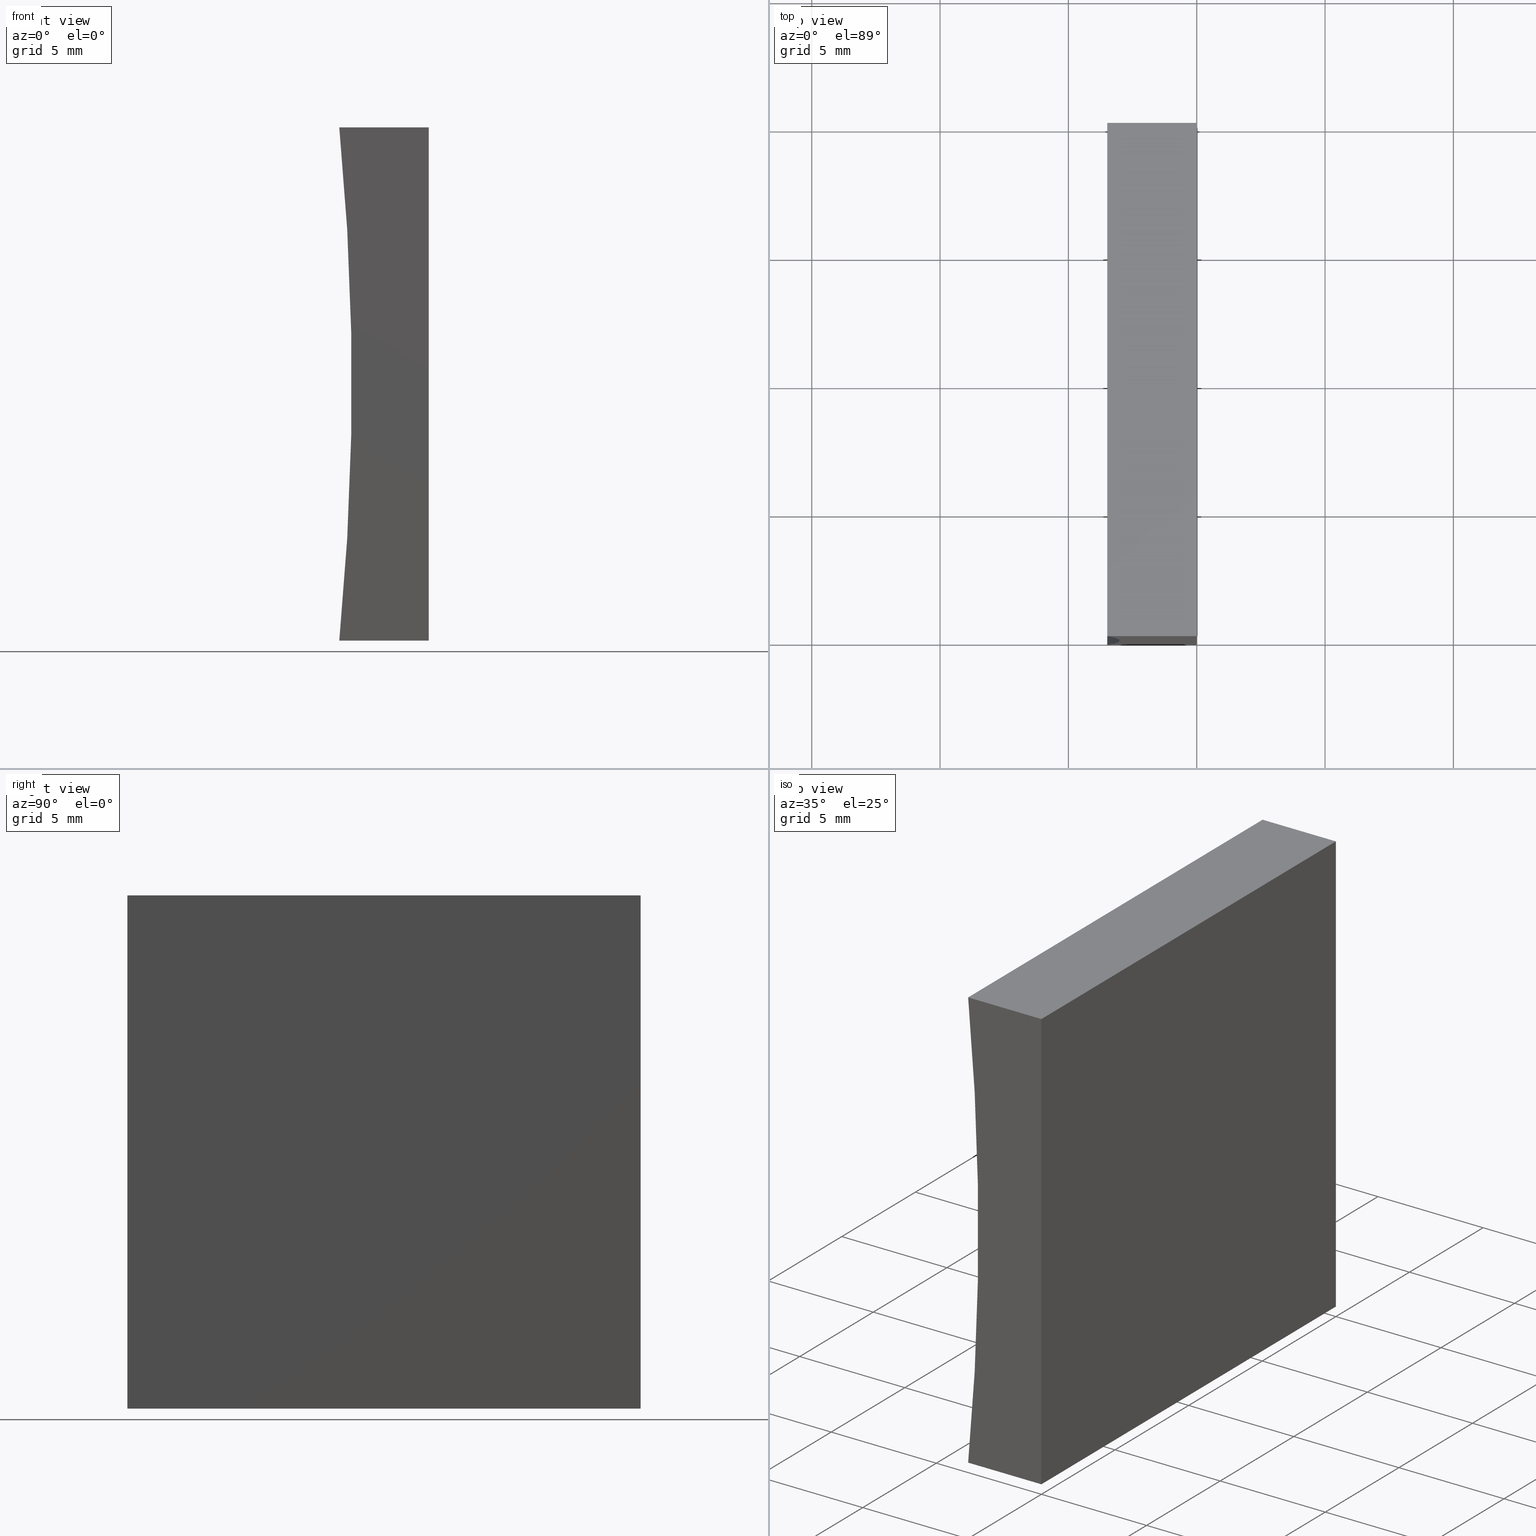
[diagram: canonical four-view strip — front | top / right | iso, engineering-drawing reading convention]
A machine part, canonical four-view strip (front | top / right | iso — engineering-drawing reading convention). The complete STEP part file that produces these views, byte-faithful:
ISO-10303-21;
HEADER;
FILE_DESCRIPTION (( 'STEP AP214' ),
    '1' );
FILE_NAME ('155349.STEP',
    '2019-06-28T06:00:40',
    ( 'user' ),
    ( '΢���й�' ),
    'SwSTEP 2.0',
    'SolidWorks 2016',
    '' );
FILE_SCHEMA (( 'AUTOMOTIVE_DESIGN' ));
ENDSEC;

DATA;
#1 = VERTEX_POINT ( 'NONE', #35 ) ;
#2 = LINE ( 'NONE', #153, #152 ) ;
#3 = EDGE_CURVE ( 'NONE', #157, #27, #21, .T. ) ;
#4 = VECTOR ( 'NONE', #156, 1000.000000000000000 ) ;
#5 = EDGE_CURVE ( 'NONE', #1, #146, #85, .T. ) ;
#6 = LINE ( 'NONE', #105, #165 ) ;
#7 = ORIENTED_EDGE ( 'NONE', *, *, #86, .T. ) ;
#8 = ORIENTED_EDGE ( 'NONE', *, *, #45, .T. ) ;
#9 =( NAMED_UNIT ( * ) SI_UNIT ( $, .STERADIAN. ) SOLID_ANGLE_UNIT ( ) );
#10 = AXIS2_PLACEMENT_3D ( 'NONE', #198, #184, #137 ) ;
#11 = ORIENTED_EDGE ( 'NONE', *, *, #182, .F. ) ;
#12 = FILL_AREA_STYLE ('',( #166 ) ) ;
#13 = FACE_OUTER_BOUND ( 'NONE', #107, .T. ) ;
#14 = DIRECTION ( 'NONE',  ( 0.0000000000000000000, 0.0000000000000000000, -1.000000000000000000 ) ) ;
#15 = DIRECTION ( 'NONE',  ( 0.0000000000000000000, 1.000000000000000000, 0.0000000000000000000 ) ) ;
#16 = LINE ( 'NONE', #180, #128 ) ;
#17 = PRODUCT_CONTEXT ( 'NONE', #162, 'mechanical' ) ;
#18 = ORIENTED_EDGE ( 'NONE', *, *, #69, .F. ) ;
#19 = AXIS2_PLACEMENT_3D ( 'NONE', #74, #111, #171 ) ;
#20 = APPLICATION_CONTEXT ( 'automotive_design' ) ;
#21 = LINE ( 'NONE', #136, #40 ) ;
#22 = ADVANCED_FACE ( 'NONE', ( #202 ), #129, .F. ) ;
#23 = CARTESIAN_POINT ( 'NONE',  ( 1.224646799147353300E-015, 20.00000000000000000, 20.00000000000000000 ) ) ;
#24 = VERTEX_POINT ( 'NONE', #56 ) ;
#25 = CYLINDRICAL_SURFACE ( 'NONE', #115, 103.3999999999999900 ) ;
#26 = MECHANICAL_DESIGN_GEOMETRIC_PRESENTATION_REPRESENTATION (  '', ( #161 ), #57 ) ;
#27 = VERTEX_POINT ( 'NONE', #163 ) ;
#28 = ORIENTED_EDGE ( 'NONE', *, *, #119, .F. ) ;
#29 = FACE_OUTER_BOUND ( 'NONE', #67, .T. ) ;
#30 = PRODUCT_DEFINITION_CONTEXT ( 'detailed design', #20, 'design' ) ;
#31 = DIRECTION ( 'NONE',  ( 0.0000000000000000000, 1.000000000000000000, 0.0000000000000000000 ) ) ;
#32 = ORIENTED_EDGE ( 'NONE', *, *, #195, .F. ) ;
#33 = EDGE_CURVE ( 'NONE', #146, #96, #42, .T. ) ;
#34 =( NAMED_UNIT ( * ) SI_UNIT ( $, .STERADIAN. ) SOLID_ANGLE_UNIT ( ) );
#35 = CARTESIAN_POINT ( 'NONE',  ( -3.484695015755795200, 0.0000000000000000000, 19.99999999999999600 ) ) ;
#36 = DIRECTION ( 'NONE',  ( -1.000000000000000000, 0.0000000000000000000, 6.123233995736766000E-017 ) ) ;
#37 = VECTOR ( 'NONE', #88, 1000.000000000000000 ) ;
#38 = CARTESIAN_POINT ( 'NONE',  ( 0.0000000000000000000, 0.0000000000000000000, 0.0000000000000000000 ) ) ;
#39 = PRODUCT ( '155349', '155349', '', ( #17 ) ) ;
#40 = VECTOR ( 'NONE', #93, 1000.000000000000000 ) ;
#41 = CARTESIAN_POINT ( 'NONE',  ( 1.224646799147353300E-015, 0.0000000000000000000, 20.00000000000000000 ) ) ;
#42 = LINE ( 'NONE', #159, #108 ) ;
#43 =( GEOMETRIC_REPRESENTATION_CONTEXT ( 3 ) GLOBAL_UNCERTAINTY_ASSIGNED_CONTEXT ( ( #126 ) ) GLOBAL_UNIT_ASSIGNED_CONTEXT ( ( #97, #176, #34 ) ) REPRESENTATION_CONTEXT ( 'NONE', 'WORKASPACE' ) );
#44 = VECTOR ( 'NONE', #78, 1000.000000000000000 ) ;
#45 = EDGE_CURVE ( 'NONE', #169, #24, #138, .T. ) ;
#46 = PRODUCT_DEFINITION_SHAPE ( 'NONE', 'NONE',  #80 ) ;
#47 = DIRECTION ( 'NONE',  ( -0.0000000000000000000, -1.000000000000000000, -0.0000000000000000000 ) ) ;
#48 = ORIENTED_EDGE ( 'NONE', *, *, #45, .F. ) ;
#49 = PRESENTATION_STYLE_ASSIGNMENT (( #142 ) ) ;
#50 = APPLICATION_PROTOCOL_DEFINITION ( 'draft international standard', 'automotive_design', 1998, #20 ) ;
#51 = EDGE_LOOP ( 'NONE', ( #151, #118, #18, #7 ) ) ;
#52 = ORIENTED_EDGE ( 'NONE', *, *, #5, .T. ) ;
#53 = PRODUCT_DEFINITION_FORMATION_WITH_SPECIFIED_SOURCE ( '�κ�', '', #39, .NOT_KNOWN. ) ;
#54 = CARTESIAN_POINT ( 'NONE',  ( 1.224646799147353300E-015, 20.00000000000000000, 20.00000000000000000 ) ) ;
#55 = SHAPE_DEFINITION_REPRESENTATION ( #46, #199 ) ;
#56 = CARTESIAN_POINT ( 'NONE',  ( 0.0000000000000000000, 20.00000000000000000, 0.0000000000000000000 ) ) ;
#57 =( GEOMETRIC_REPRESENTATION_CONTEXT ( 3 ) GLOBAL_UNCERTAINTY_ASSIGNED_CONTEXT ( ( #73 ) ) GLOBAL_UNIT_ASSIGNED_CONTEXT ( ( #62, #150, #168 ) ) REPRESENTATION_CONTEXT ( 'NONE', 'WORKASPACE' ) );
#58 = CARTESIAN_POINT ( 'NONE',  ( -3.484695015755795200, 20.00000000000000000, 19.99999999999999600 ) ) ;
#59 = SURFACE_SIDE_STYLE ('',( #83 ) ) ;
#60 = PRODUCT_RELATED_PRODUCT_CATEGORY ( 'part', '', ( #39 ) ) ;
#61 = ADVANCED_FACE ( 'NONE', ( #13 ), #122, .F. ) ;
#62 =( LENGTH_UNIT ( ) NAMED_UNIT ( * ) SI_UNIT ( .MILLI., .METRE. ) );
#63 = FACE_OUTER_BOUND ( 'NONE', #51, .T. ) ;
#64 = DIRECTION ( 'NONE',  ( -0.0000000000000000000, -1.000000000000000000, -0.0000000000000000000 ) ) ;
#65 = DIRECTION ( 'NONE',  ( 9.956242759457458300E-016, 0.0000000000000000000, -1.000000000000000000 ) ) ;
#66 = STYLED_ITEM ( 'NONE', ( #49 ), #199 ) ;
#67 = EDGE_LOOP ( 'NONE', ( #145, #197, #28, #101 ) ) ;
#68 = DIRECTION ( 'NONE',  ( 6.123233995736766000E-017, 0.0000000000000000000, 1.000000000000000000 ) ) ;
#69 = EDGE_CURVE ( 'NONE', #24, #157, #149, .T. ) ;
#70 =( NAMED_UNIT ( * ) PLANE_ANGLE_UNIT ( ) SI_UNIT ( $, .RADIAN. ) );
#71 = LINE ( 'NONE', #82, #173 ) ;
#72 = APPLICATION_PROTOCOL_DEFINITION ( 'draft international standard', 'automotive_design', 1998, #162 ) ;
#73 = UNCERTAINTY_MEASURE_WITH_UNIT (LENGTH_MEASURE( 1.000000000000000100E-005 ), #62, 'distance_accuracy_value', 'NONE');
#74 = CARTESIAN_POINT ( 'NONE',  ( 0.0000000000000000000, 20.00000000000000000, 0.0000000000000000000 ) ) ;
#75 = CIRCLE ( 'NONE', #10, 103.4000000000000200 ) ;
#76 = COLOUR_RGB ( '',1.000000000000000000, 1.000000000000000000, 1.000000000000000000 ) ;
#77 = DIRECTION ( 'NONE',  ( 1.000000000000000000, -0.0000000000000000000, 9.956242759457458300E-016 ) ) ;
#78 = DIRECTION ( 'NONE',  ( -1.000000000000000000, 0.0000000000000000000, 9.956242759457456300E-016 ) ) ;
#79 = MECHANICAL_DESIGN_GEOMETRIC_PRESENTATION_REPRESENTATION (  '', ( #66 ), #110 ) ;
#80 = PRODUCT_DEFINITION ( 'δ֪', '', #53, #30 ) ;
#81 = DIRECTION ( 'NONE',  ( -0.0000000000000000000, -1.000000000000000000, -0.0000000000000000000 ) ) ;
#82 = CARTESIAN_POINT ( 'NONE',  ( 1.224646799147353300E-015, 20.00000000000000000, 20.00000000000000000 ) ) ;
#83 = SURFACE_STYLE_FILL_AREA ( #12 ) ;
#84 = CARTESIAN_POINT ( 'NONE',  ( 0.0000000000000000000, 0.0000000000000000000, 0.0000000000000000000 ) ) ;
#85 = LINE ( 'NONE', #139, #158 ) ;
#86 = EDGE_CURVE ( 'NONE', #24, #96, #6, .T. ) ;
#87 = LINE ( 'NONE', #38, #44 ) ;
#88 = DIRECTION ( 'NONE',  ( -1.000000000000000000, 0.0000000000000000000, 9.956242759457456300E-016 ) ) ;
#89 = EDGE_LOOP ( 'NONE', ( #99, #193, #102, #8 ) ) ;
#90 = EDGE_CURVE ( 'NONE', #27, #1, #75, .T. ) ;
#91 = CARTESIAN_POINT ( 'NONE',  ( -106.4000000000000100, 20.00000000000000000, 10.00000000000001600 ) ) ;
#92 = CARTESIAN_POINT ( 'NONE',  ( 0.0000000000000000000, 20.00000000000000000, 0.0000000000000000000 ) ) ;
#93 = DIRECTION ( 'NONE',  ( -0.0000000000000000000, -1.000000000000000000, -0.0000000000000000000 ) ) ;
#94 = CARTESIAN_POINT ( 'NONE',  ( 0.0000000000000000000, 20.00000000000000000, 0.0000000000000000000 ) ) ;
#95 = EDGE_CURVE ( 'NONE', #96, #27, #87, .T. ) ;
#96 = VERTEX_POINT ( 'NONE', #84 ) ;
#97 =( LENGTH_UNIT ( ) NAMED_UNIT ( * ) SI_UNIT ( .MILLI., .METRE. ) );
#98 = DIRECTION ( 'NONE',  ( 0.0000000000000000000, 0.0000000000000000000, 1.000000000000000000 ) ) ;
#99 = ORIENTED_EDGE ( 'NONE', *, *, #69, .T. ) ;
#100 = ORIENTED_EDGE ( 'NONE', *, *, #147, .T. ) ;
#101 = ORIENTED_EDGE ( 'NONE', *, *, #3, .T. ) ;
#102 = ORIENTED_EDGE ( 'NONE', *, *, #182, .T. ) ;
#103 = AXIS2_PLACEMENT_3D ( 'NONE', #91, #64, #135 ) ;
#104 = ORIENTED_EDGE ( 'NONE', *, *, #195, .T. ) ;
#105 = CARTESIAN_POINT ( 'NONE',  ( 0.0000000000000000000, 20.00000000000000000, 0.0000000000000000000 ) ) ;
#106 = DIRECTION ( 'NONE',  ( -6.123233995736766000E-017, -0.0000000000000000000, -1.000000000000000000 ) ) ;
#107 = EDGE_LOOP ( 'NONE', ( #134, #113, #141, #177 ) ) ;
#108 = VECTOR ( 'NONE', #106, 1000.000000000000000 ) ;
#109 = FILL_AREA_STYLE ('',( #160 ) ) ;
#110 =( GEOMETRIC_REPRESENTATION_CONTEXT ( 3 ) GLOBAL_UNCERTAINTY_ASSIGNED_CONTEXT ( ( #189 ) ) GLOBAL_UNIT_ASSIGNED_CONTEXT ( ( #124, #70, #9 ) ) REPRESENTATION_CONTEXT ( 'NONE', 'WORKASPACE' ) );
#111 = DIRECTION ( 'NONE',  ( 9.956242759457456300E-016, -0.0000000000000000000, 1.000000000000000000 ) ) ;
#112 = AXIS2_PLACEMENT_3D ( 'NONE', #148, #15, #164 ) ;
#113 = ORIENTED_EDGE ( 'NONE', *, *, #33, .F. ) ;
#114 = ORIENTED_EDGE ( 'NONE', *, *, #86, .F. ) ;
#115 = AXIS2_PLACEMENT_3D ( 'NONE', #140, #121, #14 ) ;
#116 = DIRECTION ( 'NONE',  ( -1.000000000000000000, 0.0000000000000000000, -9.956242759457458300E-016 ) ) ;
#117 = AXIS2_PLACEMENT_3D ( 'NONE', #54, #65, #116 ) ;
#118 = ORIENTED_EDGE ( 'NONE', *, *, #3, .F. ) ;
#119 = EDGE_CURVE ( 'NONE', #157, #123, #178, .T. ) ;
#120 = FACE_OUTER_BOUND ( 'NONE', #188, .T. ) ;
#121 = DIRECTION ( 'NONE',  ( -0.0000000000000000000, -1.000000000000000000, -0.0000000000000000000 ) ) ;
#122 = PLANE ( 'NONE',  #112 ) ;
#123 = VERTEX_POINT ( 'NONE', #58 ) ;
#124 =( LENGTH_UNIT ( ) NAMED_UNIT ( * ) SI_UNIT ( .MILLI., .METRE. ) );
#125 = AXIS2_PLACEMENT_3D ( 'NONE', #143, #31, #131 ) ;
#126 = UNCERTAINTY_MEASURE_WITH_UNIT (LENGTH_MEASURE( 1.000000000000000100E-005 ), #97, 'distance_accuracy_value', 'NONE');
#127 = DIRECTION ( 'NONE',  ( 1.000000000000000000, 0.0000000000000000000, 0.0000000000000000000 ) ) ;
#128 = VECTOR ( 'NONE', #183, 1000.000000000000000 ) ;
#129 = PLANE ( 'NONE',  #117 ) ;
#130 = PLANE ( 'NONE',  #133 ) ;
#131 = DIRECTION ( 'NONE',  ( 0.0000000000000000000, -0.0000000000000000000, 1.000000000000000000 ) ) ;
#132 = COLOUR_RGB ( '',1.000000000000000000, 1.000000000000000000, 1.000000000000000000 ) ;
#133 = AXIS2_PLACEMENT_3D ( 'NONE', #94, #36, #68 ) ;
#134 = ORIENTED_EDGE ( 'NONE', *, *, #95, .F. ) ;
#135 = DIRECTION ( 'NONE',  ( 0.0000000000000000000, 0.0000000000000000000, 1.000000000000000000 ) ) ;
#136 = CARTESIAN_POINT ( 'NONE',  ( -3.484695015755795200, 20.00000000000000000, 1.040834085586084300E-014 ) ) ;
#137 = DIRECTION ( 'NONE',  ( 0.0000000000000000000, 0.0000000000000000000, 1.000000000000000000 ) ) ;
#138 = LINE ( 'NONE', #144, #4 ) ;
#139 = CARTESIAN_POINT ( 'NONE',  ( 1.224646799147353300E-015, 0.0000000000000000000, 20.00000000000000000 ) ) ;
#140 = CARTESIAN_POINT ( 'NONE',  ( -106.4000000000000100, 20.00000000000000000, 10.00000000000001600 ) ) ;
#141 = ORIENTED_EDGE ( 'NONE', *, *, #5, .F. ) ;
#142 = SURFACE_STYLE_USAGE ( .BOTH. , #181 ) ;
#143 = CARTESIAN_POINT ( 'NONE',  ( -106.4000000000000100, 20.00000000000000000, 10.00000000000001600 ) ) ;
#144 = CARTESIAN_POINT ( 'NONE',  ( 0.0000000000000000000, 20.00000000000000000, 0.0000000000000000000 ) ) ;
#145 = ORIENTED_EDGE ( 'NONE', *, *, #90, .T. ) ;
#146 = VERTEX_POINT ( 'NONE', #41 ) ;
#147 = EDGE_CURVE ( 'NONE', #123, #1, #2, .T. ) ;
#148 = CARTESIAN_POINT ( 'NONE',  ( -106.4000000000000100, 0.0000000000000000000, 10.00000000000001600 ) ) ;
#149 = LINE ( 'NONE', #92, #37 ) ;
#150 =( NAMED_UNIT ( * ) PLANE_ANGLE_UNIT ( ) SI_UNIT ( $, .RADIAN. ) );
#151 = ORIENTED_EDGE ( 'NONE', *, *, #95, .T. ) ;
#152 = VECTOR ( 'NONE', #201, 1000.000000000000000 ) ;
#153 = CARTESIAN_POINT ( 'NONE',  ( -3.484695015755795200, 20.00000000000000000, 19.99999999999999600 ) ) ;
#154 = MANIFOLD_SOLID_BREP ( '͹̨-����1', #167 ) ;
#155 = ADVANCED_FACE ( 'NONE', ( #194 ), #203, .T. ) ;
#156 = DIRECTION ( 'NONE',  ( -6.123233995736766000E-017, -0.0000000000000000000, -1.000000000000000000 ) ) ;
#157 = VERTEX_POINT ( 'NONE', #179 ) ;
#158 = VECTOR ( 'NONE', #77, 1000.000000000000000 ) ;
#159 = CARTESIAN_POINT ( 'NONE',  ( 0.0000000000000000000, 0.0000000000000000000, 0.0000000000000000000 ) ) ;
#160 = FILL_AREA_STYLE_COLOUR ( '', #76 ) ;
#161 = STYLED_ITEM ( 'NONE', ( #172 ), #154 ) ;
#162 = APPLICATION_CONTEXT ( 'automotive_design' ) ;
#163 = CARTESIAN_POINT ( 'NONE',  ( -3.484695015755795200, 0.0000000000000000000, 1.040834085586084300E-014 ) ) ;
#164 = DIRECTION ( 'NONE',  ( 0.0000000000000000000, -0.0000000000000000000, 1.000000000000000000 ) ) ;
#165 = VECTOR ( 'NONE', #47, 1000.000000000000000 ) ;
#166 = FILL_AREA_STYLE_COLOUR ( '', #132 ) ;
#167 = CLOSED_SHELL ( 'NONE', ( #174, #191, #22, #204, #155, #61 ) ) ;
#168 =( NAMED_UNIT ( * ) SI_UNIT ( $, .STERADIAN. ) SOLID_ANGLE_UNIT ( ) );
#169 = VERTEX_POINT ( 'NONE', #23 ) ;
#170 = PRESENTATION_LAYER_ASSIGNMENT (  '', '', ( #161 ) ) ;
#171 = DIRECTION ( 'NONE',  ( 1.000000000000000000, 0.0000000000000000000, -9.956242759457456300E-016 ) ) ;
#172 = PRESENTATION_STYLE_ASSIGNMENT (( #196 ) ) ;
#173 = VECTOR ( 'NONE', #81, 1000.000000000000000 ) ;
#174 = ADVANCED_FACE ( 'NONE', ( #63 ), #192, .F. ) ;
#175 = AXIS2_PLACEMENT_3D ( 'NONE', #200, #98, #127 ) ;
#176 =( NAMED_UNIT ( * ) PLANE_ANGLE_UNIT ( ) SI_UNIT ( $, .RADIAN. ) );
#177 = ORIENTED_EDGE ( 'NONE', *, *, #90, .F. ) ;
#178 = CIRCLE ( 'NONE', #103, 103.4000000000000200 ) ;
#179 = CARTESIAN_POINT ( 'NONE',  ( -3.484695015755795200, 20.00000000000000000, 1.040834085586084300E-014 ) ) ;
#180 = CARTESIAN_POINT ( 'NONE',  ( 1.224646799147353300E-015, 20.00000000000000000, 20.00000000000000000 ) ) ;
#181 = SURFACE_SIDE_STYLE ('',( #190 ) ) ;
#182 = EDGE_CURVE ( 'NONE', #123, #169, #16, .T. ) ;
#183 = DIRECTION ( 'NONE',  ( 1.000000000000000000, -0.0000000000000000000, 9.956242759457458300E-016 ) ) ;
#184 = DIRECTION ( 'NONE',  ( -0.0000000000000000000, -1.000000000000000000, -0.0000000000000000000 ) ) ;
#185 = ORIENTED_EDGE ( 'NONE', *, *, #33, .T. ) ;
#186 = PRESENTATION_LAYER_ASSIGNMENT (  '', '', ( #66 ) ) ;
#187 = EDGE_LOOP ( 'NONE', ( #52, #32, #11, #100 ) ) ;
#188 = EDGE_LOOP ( 'NONE', ( #185, #114, #48, #104 ) ) ;
#189 = UNCERTAINTY_MEASURE_WITH_UNIT (LENGTH_MEASURE( 1.000000000000000100E-005 ), #124, 'distance_accuracy_value', 'NONE');
#190 = SURFACE_STYLE_FILL_AREA ( #109 ) ;
#191 = ADVANCED_FACE ( 'NONE', ( #29 ), #25, .F. ) ;
#192 = PLANE ( 'NONE',  #19 ) ;
#193 = ORIENTED_EDGE ( 'NONE', *, *, #119, .T. ) ;
#194 = FACE_OUTER_BOUND ( 'NONE', #89, .T. ) ;
#195 = EDGE_CURVE ( 'NONE', #169, #146, #71, .T. ) ;
#196 = SURFACE_STYLE_USAGE ( .BOTH. , #59 ) ;
#197 = ORIENTED_EDGE ( 'NONE', *, *, #147, .F. ) ;
#198 = CARTESIAN_POINT ( 'NONE',  ( -106.4000000000000100, 0.0000000000000000000, 10.00000000000001600 ) ) ;
#199 = ADVANCED_BREP_SHAPE_REPRESENTATION ( '155349', ( #154, #175 ), #43 ) ;
#200 = CARTESIAN_POINT ( 'NONE',  ( 0.0000000000000000000, 0.0000000000000000000, 0.0000000000000000000 ) ) ;
#201 = DIRECTION ( 'NONE',  ( -0.0000000000000000000, -1.000000000000000000, -0.0000000000000000000 ) ) ;
#202 = FACE_OUTER_BOUND ( 'NONE', #187, .T. ) ;
#203 = PLANE ( 'NONE',  #125 ) ;
#204 = ADVANCED_FACE ( 'NONE', ( #120 ), #130, .F. ) ;
ENDSEC;
END-ISO-10303-21;
